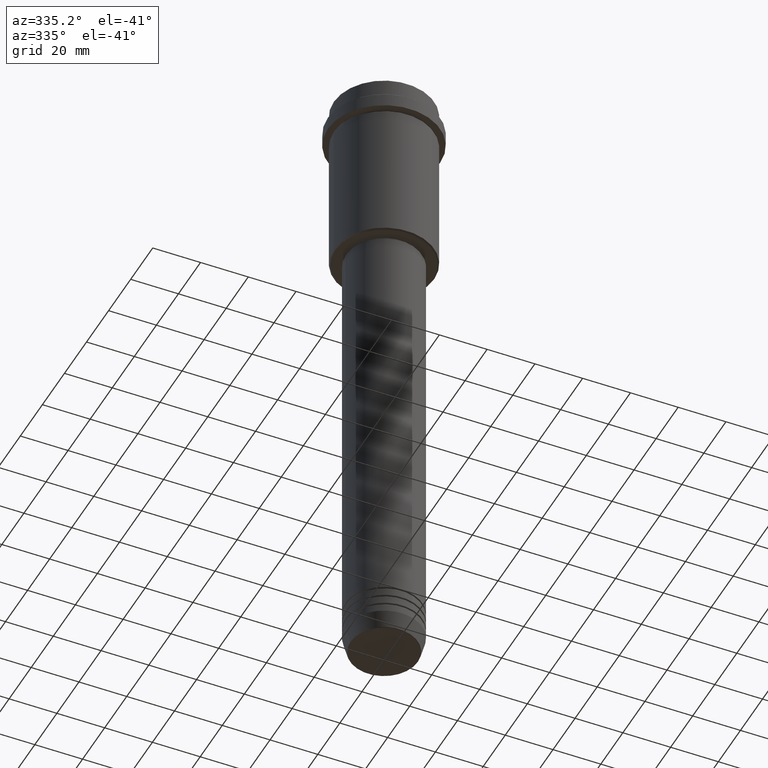
[diagram: clean part render]
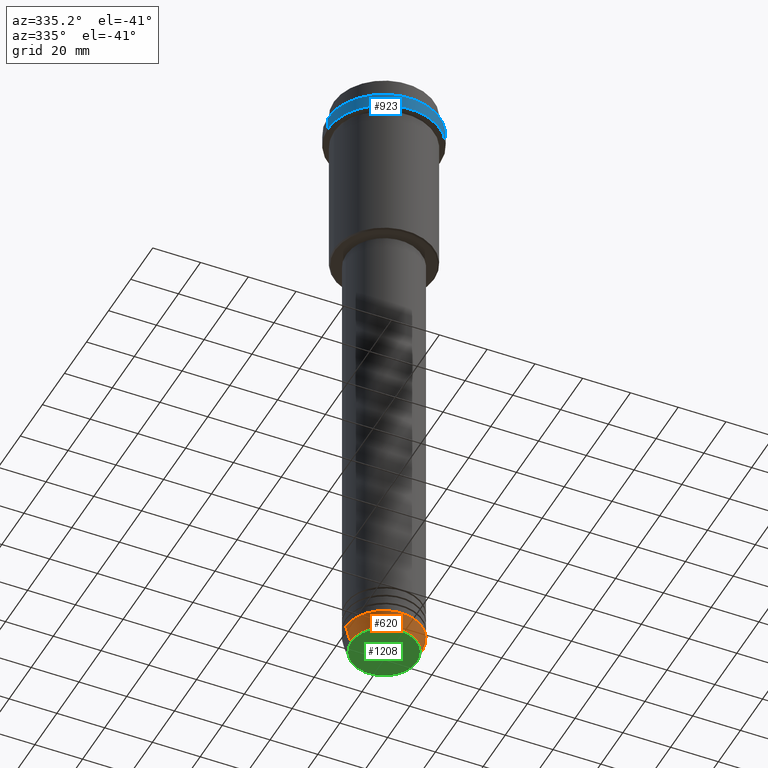
[diagram: same view with three faces highlighted in distinct colors, each labeled with its STEP entity id]
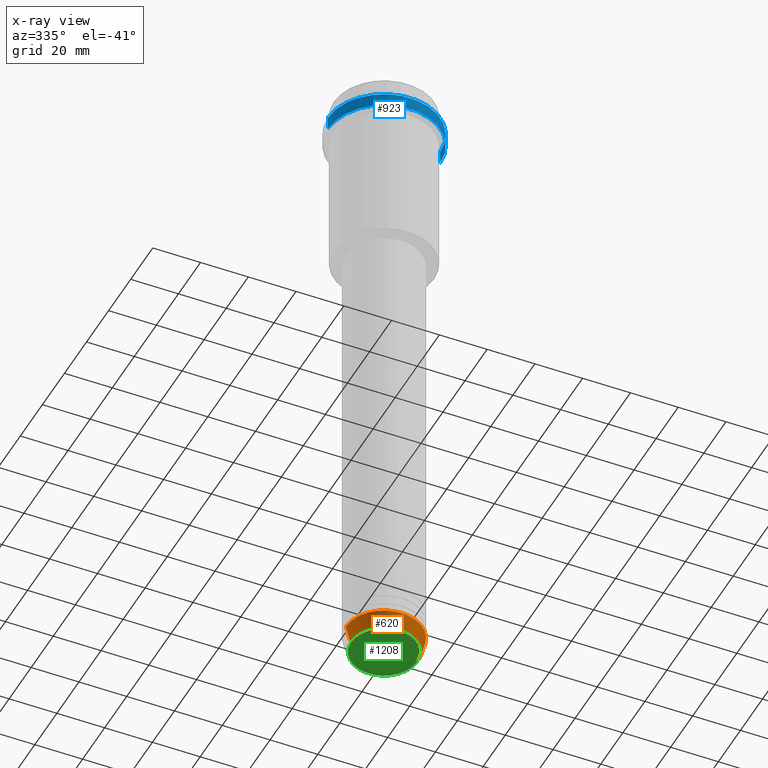
[diagram: x-ray of the same camera — body ghosted, the three highlighted faces saturated]
A machine part, auxiliary view with three faces highlighted in distinct colors.
The next image is the same camera in x-ray (body ghosted, the three faces saturated) — at least one of them is partly hidden behind the body in this view.
Their STEP definitions:

[orange] entity #620 — the highlighted conical surface has half-angle 15 deg.
#11 = EDGE_CURVE ( 'NONE', #226, #996, #1370, .T. ) ;
#159 = AXIS2_PLACEMENT_3D ( 'NONE', #1297, #1212, #1068 ) ;
#223 = ORIENTED_EDGE ( 'NONE', *, *, #915, .T. ) ;
#226 = VERTEX_POINT ( 'NONE', #709 ) ;
#251 = VECTOR ( 'NONE', #1054, 1000.000000000000000 ) ;
#257 = DIRECTION ( 'NONE',  ( -0.000000000000000000, -0.000000000000000000, 1.000000000000000000 ) ) ;
#286 = LINE ( 'NONE', #1253, #251 ) ;
#299 = CARTESIAN_POINT ( 'NONE',  ( 16.00000000000000000, 0.000000000000000000, -263.0000000000000000 ) ) ;
#320 = EDGE_CURVE ( 'NONE', #226, #1385, #286, .T. ) ;
#411 = CARTESIAN_POINT ( 'NONE',  ( -16.00000000000000000, 1.959434878635765131E-15, -263.0000000000000000 ) ) ;
#413 = LINE ( 'NONE', #299, #864 ) ;
#454 = AXIS2_PLACEMENT_3D ( 'NONE', #666, #992, #671 ) ;
#487 = ORIENTED_EDGE ( 'NONE', *, *, #587, .F. ) ;
#561 = CARTESIAN_POINT ( 'NONE',  ( 16.00000000000000000, 0.000000000000000000, -263.0000000000000000 ) ) ;
#587 = EDGE_CURVE ( 'NONE', #1385, #935, #775, .T. ) ;
#620 = ADVANCED_FACE ( 'NONE', ( #1220 ), #936, .T. ) ;
#666 = CARTESIAN_POINT ( 'NONE',  ( 0.000000000000000000, 0.000000000000000000, -263.0000000000000000 ) ) ;
#671 = DIRECTION ( 'NONE',  ( 1.000000000000000000, 0.000000000000000000, 0.000000000000000000 ) ) ;
#709 = CARTESIAN_POINT ( 'NONE',  ( -14.22365507213718772, 1.850665122131323337E-15, -269.6294095225512706 ) ) ;
#717 = ORIENTED_EDGE ( 'NONE', *, *, #320, .F. ) ;
#756 = EDGE_LOOP ( 'NONE', ( #717, #952, #223, #487 ) ) ;
#765 = CARTESIAN_POINT ( 'NONE',  ( 0.000000000000000000, 0.000000000000000000, -263.0000000000000000 ) ) ;
#774 = DIRECTION ( 'NONE',  ( 1.000000000000000000, 0.000000000000000000, 0.000000000000000000 ) ) ;
#775 = CIRCLE ( 'NONE', #1098, 16.00000000000000000 ) ;
#864 = VECTOR ( 'NONE', #1294, 1000.000000000000000 ) ;
#889 = CARTESIAN_POINT ( 'NONE',  ( 14.22365507213718772, 0.000000000000000000, -269.6294095225512706 ) ) ;
#915 = EDGE_CURVE ( 'NONE', #996, #935, #413, .T. ) ;
#935 = VERTEX_POINT ( 'NONE', #561 ) ;
#936 = CONICAL_SURFACE ( 'NONE', #454, 16.00000000000000000, 0.2617993877991500740 ) ;
#952 = ORIENTED_EDGE ( 'NONE', *, *, #11, .T. ) ;
#992 = DIRECTION ( 'NONE',  ( -0.000000000000000000, -0.000000000000000000, 1.000000000000000000 ) ) ;
#996 = VERTEX_POINT ( 'NONE', #889 ) ;
#1054 = DIRECTION ( 'NONE',  ( -0.2588190451025213501, 3.169619151431772337E-17, 0.9659258262890680902 ) ) ;
#1068 = DIRECTION ( 'NONE',  ( 1.000000000000000000, 0.000000000000000000, 0.000000000000000000 ) ) ;
#1098 = AXIS2_PLACEMENT_3D ( 'NONE', #765, #257, #774 ) ;
#1212 = DIRECTION ( 'NONE',  ( -0.000000000000000000, -0.000000000000000000, 1.000000000000000000 ) ) ;
#1220 = FACE_OUTER_BOUND ( 'NONE', #756, .T. ) ;
#1253 = CARTESIAN_POINT ( 'NONE',  ( -16.00000000000000000, 1.959434878635765131E-15, -263.0000000000000000 ) ) ;
#1294 = DIRECTION ( 'NONE',  ( 0.2588190451025213501, 0.000000000000000000, 0.9659258262890680902 ) ) ;
#1297 = CARTESIAN_POINT ( 'NONE',  ( 0.000000000000000000, 0.000000000000000000, -269.6294095225512706 ) ) ;
#1370 = CIRCLE ( 'NONE', #159, 14.22365507213718772 ) ;
#1385 = VERTEX_POINT ( 'NONE', #411 ) ;

[blue] entity #923 — the highlighted cylindrical surface (partial cylindrical patch) has radius 23.5 mm, axis along (-0, -0, 1).
#44 = DIRECTION ( 'NONE',  ( 1.000000000000000000, 0.000000000000000000, 0.000000000000000000 ) ) ;
#66 = EDGE_CURVE ( 'NONE', #847, #891, #684, .T. ) ;
#101 = CARTESIAN_POINT ( 'NONE',  ( 0.000000000000000000, 0.000000000000000000, 0.000000000000000000 ) ) ;
#128 = DIRECTION ( 'NONE',  ( -0.000000000000000000, -0.000000000000000000, 1.000000000000000000 ) ) ;
#155 = DIRECTION ( 'NONE',  ( 1.000000000000000000, 0.000000000000000000, 0.000000000000000000 ) ) ;
#164 = CIRCLE ( 'NONE', #839, 23.50000000000000355 ) ;
#220 = CARTESIAN_POINT ( 'NONE',  ( 23.50000000000000000, 0.000000000000000000, -9.500000000000056843 ) ) ;
#273 = VECTOR ( 'NONE', #128, 1000.000000000000000 ) ;
#333 = VERTEX_POINT ( 'NONE', #510 ) ;
#342 = AXIS2_PLACEMENT_3D ( 'NONE', #101, #459, #764 ) ;
#356 = CARTESIAN_POINT ( 'NONE',  ( 0.000000000000000000, 0.000000000000000000, -9.500000000000056843 ) ) ;
#459 = DIRECTION ( 'NONE',  ( -0.000000000000000000, -0.000000000000000000, 1.000000000000000000 ) ) ;
#510 = CARTESIAN_POINT ( 'NONE',  ( -23.50000000000000711, 2.877919977996281109E-15, -15.00000000000000178 ) ) ;
#528 = EDGE_CURVE ( 'NONE', #333, #1317, #1335, .T. ) ;
#582 = EDGE_CURVE ( 'NONE', #891, #1317, #1165, .T. ) ;
#594 = EDGE_LOOP ( 'NONE', ( #1309, #640, #1184, #1033 ) ) ;
#595 = CARTESIAN_POINT ( 'NONE',  ( 0.000000000000000000, 0.000000000000000000, -15.00000000000000178 ) ) ;
#634 = FACE_OUTER_BOUND ( 'NONE', #594, .T. ) ;
#640 = ORIENTED_EDGE ( 'NONE', *, *, #720, .T. ) ;
#684 = LINE ( 'NONE', #1356, #1190 ) ;
#715 = DIRECTION ( 'NONE',  ( -0.000000000000000000, -0.000000000000000000, 1.000000000000000000 ) ) ;
#720 = EDGE_CURVE ( 'NONE', #333, #847, #164, .T. ) ;
#764 = DIRECTION ( 'NONE',  ( 1.000000000000000000, 0.000000000000000000, 0.000000000000000000 ) ) ;
#839 = AXIS2_PLACEMENT_3D ( 'NONE', #595, #715, #155 ) ;
#847 = VERTEX_POINT ( 'NONE', #1058 ) ;
#885 = DIRECTION ( 'NONE',  ( -0.000000000000000000, -0.000000000000000000, 1.000000000000000000 ) ) ;
#891 = VERTEX_POINT ( 'NONE', #220 ) ;
#923 = ADVANCED_FACE ( 'NONE', ( #634 ), #1073, .T. ) ;
#1033 = ORIENTED_EDGE ( 'NONE', *, *, #582, .T. ) ;
#1058 = CARTESIAN_POINT ( 'NONE',  ( 23.50000000000000355, 0.000000000000000000, -15.00000000000000178 ) ) ;
#1073 = CYLINDRICAL_SURFACE ( 'NONE', #342, 23.50000000000000000 ) ;
#1165 = CIRCLE ( 'NONE', #1396, 23.50000000000000000 ) ;
#1184 = ORIENTED_EDGE ( 'NONE', *, *, #66, .T. ) ;
#1190 = VECTOR ( 'NONE', #885, 1000.000000000000000 ) ;
#1202 = CARTESIAN_POINT ( 'NONE',  ( -23.50000000000000000, 2.877919977996280320E-15, -9.500000000000056843 ) ) ;
#1240 = DIRECTION ( 'NONE',  ( 0.000000000000000000, 0.000000000000000000, -1.000000000000000000 ) ) ;
#1309 = ORIENTED_EDGE ( 'NONE', *, *, #528, .F. ) ;
#1317 = VERTEX_POINT ( 'NONE', #1202 ) ;
#1325 = CARTESIAN_POINT ( 'NONE',  ( -23.50000000000000000, 2.877919977996280320E-15, 0.000000000000000000 ) ) ;
#1335 = LINE ( 'NONE', #1325, #273 ) ;
#1356 = CARTESIAN_POINT ( 'NONE',  ( 23.50000000000000000, 0.000000000000000000, 0.000000000000000000 ) ) ;
#1396 = AXIS2_PLACEMENT_3D ( 'NONE', #356, #1240, #44 ) ;

[green] entity #1208 — the highlighted planar face has unit normal (0, -0, 1).
#75 = CIRCLE ( 'NONE', #868, 13.74069215899265828 ) ;
#135 = CARTESIAN_POINT ( 'NONE',  ( 13.74069215899265828, 0.000000000000000000, -270.0000000000000000 ) ) ;
#137 = CARTESIAN_POINT ( 'NONE',  ( -13.74069215899265828, 1.712322416342415986E-15, -270.0000000000000000 ) ) ;
#144 = AXIS2_PLACEMENT_3D ( 'NONE', #866, #950, #1387 ) ;
#256 = EDGE_LOOP ( 'NONE', ( #402, #1056 ) ) ;
#309 = DIRECTION ( 'NONE',  ( 0.000000000000000000, 0.000000000000000000, -1.000000000000000000 ) ) ;
#402 = ORIENTED_EDGE ( 'NONE', *, *, #768, .T. ) ;
#427 = FACE_OUTER_BOUND ( 'NONE', #256, .T. ) ;
#492 = DIRECTION ( 'NONE',  ( 1.000000000000000000, 0.000000000000000000, 0.000000000000000000 ) ) ;
#509 = PLANE ( 'NONE',  #144 ) ;
#633 = VERTEX_POINT ( 'NONE', #137 ) ;
#768 = EDGE_CURVE ( 'NONE', #1030, #633, #916, .T. ) ;
#866 = CARTESIAN_POINT ( 'NONE',  ( 0.000000000000000000, 0.000000000000000000, -270.0000000000000000 ) ) ;
#868 = AXIS2_PLACEMENT_3D ( 'NONE', #1298, #309, #1095 ) ;
#916 = CIRCLE ( 'NONE', #1167, 13.74069215899265828 ) ;
#920 = DIRECTION ( 'NONE',  ( 0.000000000000000000, 0.000000000000000000, -1.000000000000000000 ) ) ;
#950 = DIRECTION ( 'NONE',  ( 0.000000000000000000, -0.000000000000000000, 1.000000000000000000 ) ) ;
#1030 = VERTEX_POINT ( 'NONE', #135 ) ;
#1056 = ORIENTED_EDGE ( 'NONE', *, *, #1275, .T. ) ;
#1095 = DIRECTION ( 'NONE',  ( 1.000000000000000000, 0.000000000000000000, 0.000000000000000000 ) ) ;
#1143 = CARTESIAN_POINT ( 'NONE',  ( 0.000000000000000000, 0.000000000000000000, -270.0000000000000000 ) ) ;
#1167 = AXIS2_PLACEMENT_3D ( 'NONE', #1143, #920, #492 ) ;
#1208 = ADVANCED_FACE ( 'NONE', ( #427 ), #509, .F. ) ;
#1275 = EDGE_CURVE ( 'NONE', #633, #1030, #75, .T. ) ;
#1298 = CARTESIAN_POINT ( 'NONE',  ( 0.000000000000000000, 0.000000000000000000, -270.0000000000000000 ) ) ;
#1387 = DIRECTION ( 'NONE',  ( 1.000000000000000000, 0.000000000000000000, 0.000000000000000000 ) ) ;